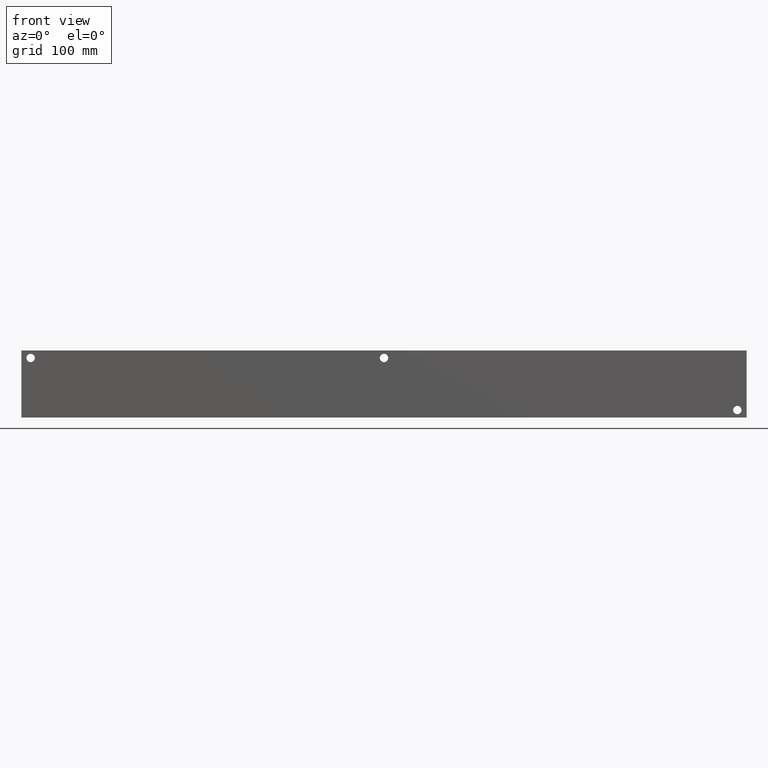
[diagram: clean part render]
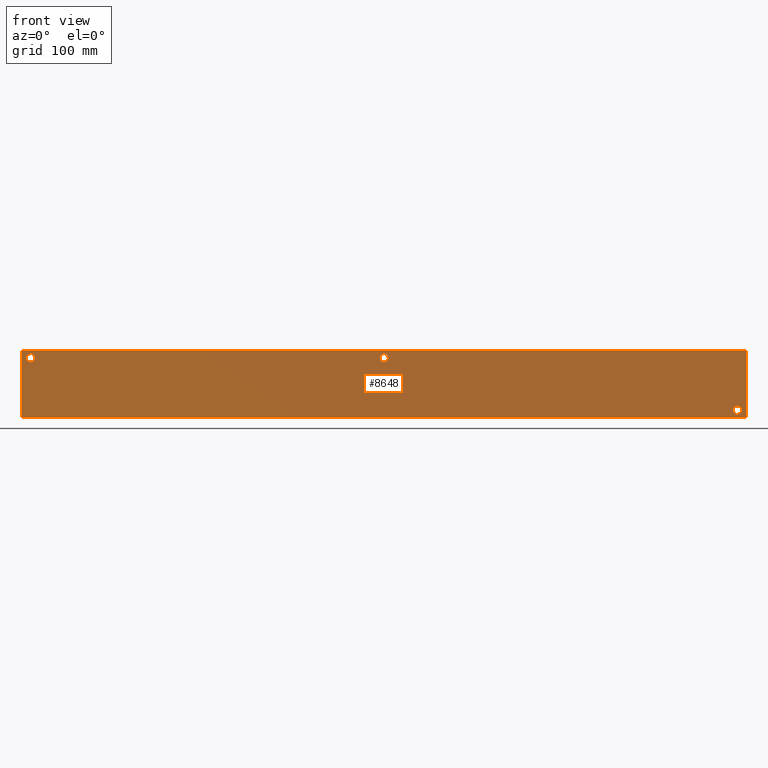
[diagram: same view with one face highlighted and labeled with its STEP entity id]
A machine part, front view. The second image highlights one B-rep face of the part: STEP entity #8648.
In plain terms, the highlighted planar face has unit normal (0, -1, 0).
Its self-contained STEP definition (entity closure, byte-faithful):
#168=CIRCLE('',#8890,3.5687);
#169=CIRCLE('',#8891,3.5687);
#171=CIRCLE('',#8900,3.5687);
#172=CIRCLE('',#8901,3.5687);
#174=CIRCLE('',#8909,3.5687);
#175=CIRCLE('',#8910,3.5687);
#454=FACE_BOUND('',#1653,.T.);
#455=FACE_BOUND('',#1654,.T.);
#456=FACE_BOUND('',#1655,.T.);
#685=PLANE('',#9259);
#1133=FACE_OUTER_BOUND('',#1652,.T.);
#1652=EDGE_LOOP('',(#7786,#7787,#7788,#7789));
#1653=EDGE_LOOP('',(#7790,#7791));
#1654=EDGE_LOOP('',(#7792,#7793));
#1655=EDGE_LOOP('',(#7794,#7795));
#1895=LINE('',#13311,#2634);
#2393=LINE('',#15071,#3132);
#2398=LINE('',#15080,#3137);
#2399=LINE('',#15082,#3138);
#2634=VECTOR('',#9612,10.);
#3132=VECTOR('',#11180,10.);
#3137=VECTOR('',#11189,10.);
#3138=VECTOR('',#11192,10.);
#3641=VERTEX_POINT('',#13309);
#3642=VERTEX_POINT('',#13310);
#3933=VERTEX_POINT('',#14278);
#3934=VERTEX_POINT('',#14279);
#3938=VERTEX_POINT('',#14296);
#3939=VERTEX_POINT('',#14297);
#3943=VERTEX_POINT('',#14312);
#3944=VERTEX_POINT('',#14313);
#4173=VERTEX_POINT('',#15069);
#4175=VERTEX_POINT('',#15078);
#4602=EDGE_CURVE('',#3641,#3642,#1895,.T.);
#5025=EDGE_CURVE('',#3933,#3934,#168,.T.);
#5026=EDGE_CURVE('',#3934,#3933,#169,.T.);
#5035=EDGE_CURVE('',#3938,#3939,#171,.T.);
#5036=EDGE_CURVE('',#3939,#3938,#172,.T.);
#5044=EDGE_CURVE('',#3943,#3944,#174,.T.);
#5045=EDGE_CURVE('',#3944,#3943,#175,.T.);
#5379=EDGE_CURVE('',#4173,#3641,#2393,.T.);
#5384=EDGE_CURVE('',#4175,#3642,#2398,.T.);
#5385=EDGE_CURVE('',#4173,#4175,#2399,.T.);
#7786=ORIENTED_EDGE('',*,*,#5385,.T.);
#7787=ORIENTED_EDGE('',*,*,#5384,.T.);
#7788=ORIENTED_EDGE('',*,*,#4602,.F.);
#7789=ORIENTED_EDGE('',*,*,#5379,.F.);
#7790=ORIENTED_EDGE('',*,*,#5025,.T.);
#7791=ORIENTED_EDGE('',*,*,#5026,.T.);
#7792=ORIENTED_EDGE('',*,*,#5035,.T.);
#7793=ORIENTED_EDGE('',*,*,#5036,.T.);
#7794=ORIENTED_EDGE('',*,*,#5044,.T.);
#7795=ORIENTED_EDGE('',*,*,#5045,.T.);
#8648=ADVANCED_FACE('',(#1133,#454,#455,#456),#685,.T.);
#8890=AXIS2_PLACEMENT_3D('',#14280,#10329,#10330);
#8891=AXIS2_PLACEMENT_3D('',#14281,#10331,#10332);
#8900=AXIS2_PLACEMENT_3D('',#14298,#10352,#10353);
#8901=AXIS2_PLACEMENT_3D('',#14299,#10354,#10355);
#8909=AXIS2_PLACEMENT_3D('',#14314,#10372,#10373);
#8910=AXIS2_PLACEMENT_3D('',#14315,#10374,#10375);
#9259=AXIS2_PLACEMENT_3D('',#15081,#11190,#11191);
#9612=DIRECTION('',(1.,0.,0.));
#10329=DIRECTION('center_axis',(0.,1.,0.));
#10330=DIRECTION('ref_axis',(1.,0.,0.));
#10331=DIRECTION('center_axis',(0.,1.,0.));
#10332=DIRECTION('ref_axis',(1.,0.,0.));
#10352=DIRECTION('center_axis',(0.,1.,0.));
#10353=DIRECTION('ref_axis',(1.,0.,0.));
#10354=DIRECTION('center_axis',(0.,1.,0.));
#10355=DIRECTION('ref_axis',(1.,0.,0.));
#10372=DIRECTION('center_axis',(0.,1.,0.));
#10373=DIRECTION('ref_axis',(1.,0.,0.));
#10374=DIRECTION('center_axis',(0.,1.,0.));
#10375=DIRECTION('ref_axis',(1.,0.,0.));
#11180=DIRECTION('',(0.,0.,1.));
#11189=DIRECTION('',(0.,0.,1.));
#11190=DIRECTION('center_axis',(0.,-1.,0.));
#11191=DIRECTION('ref_axis',(1.,0.,0.));
#11192=DIRECTION('',(1.,0.,0.));
#13309=CARTESIAN_POINT('',(0.,0.,57.15));
#13310=CARTESIAN_POINT('',(619.125,0.,57.15));
#13311=CARTESIAN_POINT('',(0.,0.,57.15));
#14278=CARTESIAN_POINT('',(614.7435,0.,6.35));
#14279=CARTESIAN_POINT('',(607.6061,7.105427357601E-14,6.35));
#14280=CARTESIAN_POINT('Origin',(611.1748,0.,6.35));
#14281=CARTESIAN_POINT('Origin',(611.1748,0.,6.35));
#14296=CARTESIAN_POINT('',(11.4935,0.,50.8));
#14297=CARTESIAN_POINT('',(4.3561,7.105427357601E-14,50.8));
#14298=CARTESIAN_POINT('Origin',(7.9248,0.,50.8));
#14299=CARTESIAN_POINT('Origin',(7.9248,0.,50.8));
#14312=CARTESIAN_POINT('',(313.1439,0.,50.8));
#14313=CARTESIAN_POINT('',(306.0065,7.105427357601E-14,50.8));
#14314=CARTESIAN_POINT('Origin',(309.5752,0.,50.8));
#14315=CARTESIAN_POINT('Origin',(309.5752,0.,50.8));
#15069=CARTESIAN_POINT('',(0.,0.,0.));
#15071=CARTESIAN_POINT('',(0.,0.,0.));
#15078=CARTESIAN_POINT('',(619.125,0.,0.));
#15080=CARTESIAN_POINT('',(619.125,0.,0.));
#15081=CARTESIAN_POINT('Origin',(0.,0.,0.));
#15082=CARTESIAN_POINT('',(0.,0.,0.));